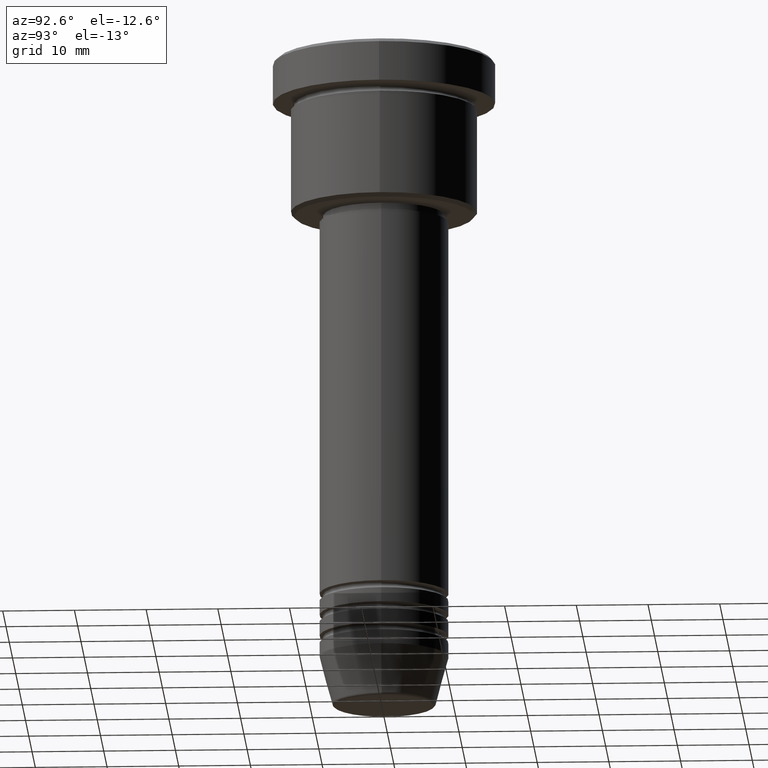
[diagram: clean part render]
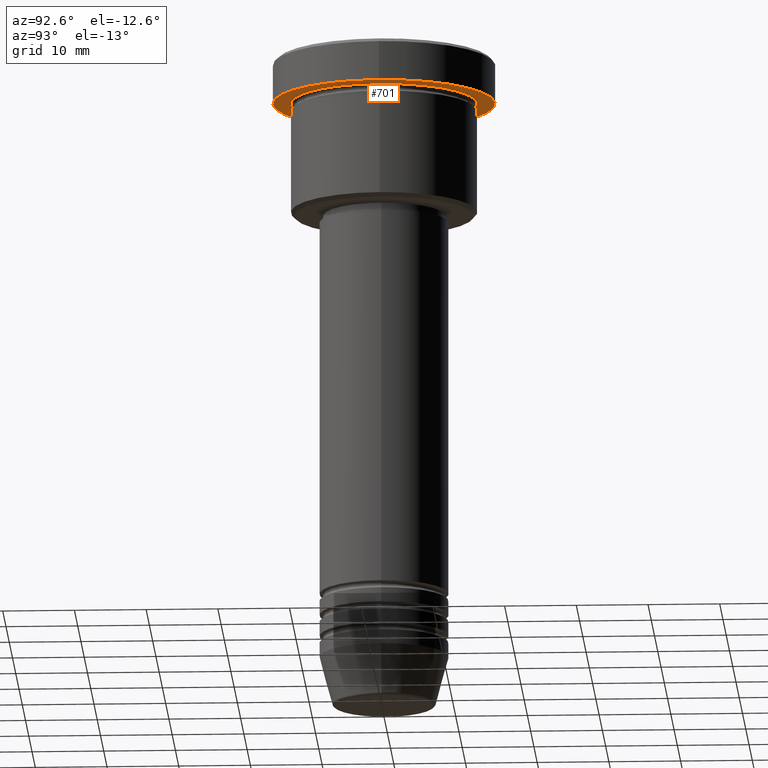
[diagram: same view with one face highlighted and labeled with its STEP entity id]
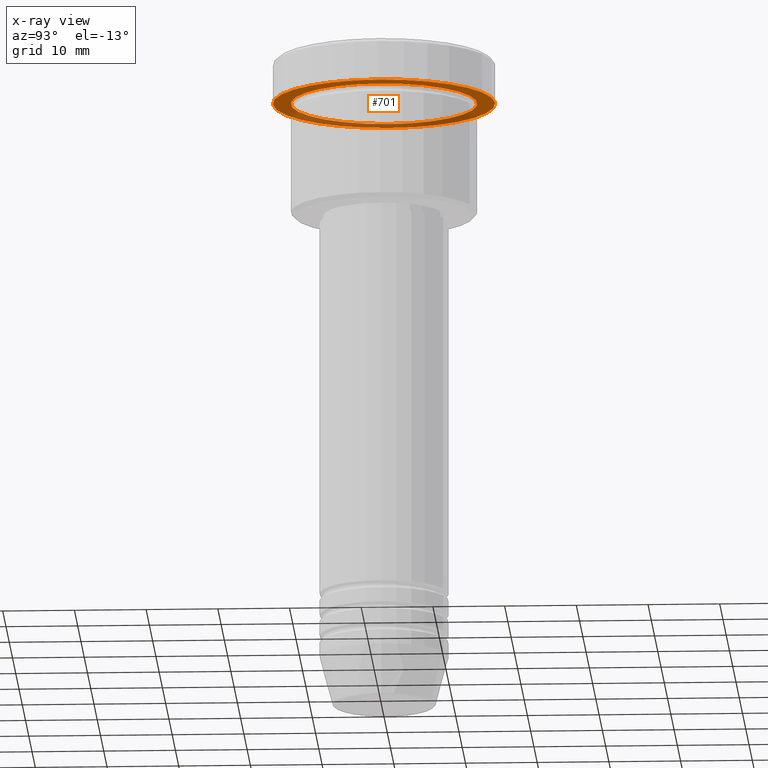
[diagram: x-ray of the same camera — body ghosted, the highlighted face saturated]
A machine part, auxiliary view. The second image highlights one B-rep face of the part: STEP entity #701.
The next image is the same camera in x-ray: the body ghosted, the highlighted face saturated — about 34% of this face is hidden behind the body in this view.
In plain terms, the highlighted planar face has unit normal (0, 0, -1).
Its self-contained STEP definition (entity closure, byte-faithful):
#7 = EDGE_CURVE ( 'NONE', #496, #918, #423, .T. ) ;
#24 = CARTESIAN_POINT ( 'NONE',  ( 0.000000000000000000, 0.000000000000000000, -5.999999999999995559 ) ) ;
#49 = VERTEX_POINT ( 'NONE', #121 ) ;
#86 = CARTESIAN_POINT ( 'NONE',  ( 0.000000000000000000, 0.000000000000000000, -5.999999999999995559 ) ) ;
#99 = CIRCLE ( 'NONE', #482, 13.00000000000000000 ) ;
#121 = CARTESIAN_POINT ( 'NONE',  ( 13.00000000000000000, 1.592040838891559095E-15, -5.999999999999994671 ) ) ;
#165 = DIRECTION ( 'NONE',  ( -1.000000000000000000, 0.000000000000000000, 0.000000000000000000 ) ) ;
#185 = PLANE ( 'NONE',  #969 ) ;
#189 = DIRECTION ( 'NONE',  ( -1.000000000000000000, 0.000000000000000000, -0.000000000000000000 ) ) ;
#203 = DIRECTION ( 'NONE',  ( -0.000000000000000000, -0.000000000000000000, 1.000000000000000000 ) ) ;
#233 = AXIS2_PLACEMENT_3D ( 'NONE', #24, #203, #963 ) ;
#261 = EDGE_LOOP ( 'NONE', ( #457, #858 ) ) ;
#287 = EDGE_CURVE ( 'NONE', #49, #1054, #99, .T. ) ;
#353 = DIRECTION ( 'NONE',  ( -1.000000000000000000, 0.000000000000000000, 0.000000000000000000 ) ) ;
#368 = AXIS2_PLACEMENT_3D ( 'NONE', #86, #1085, #165 ) ;
#423 = CIRCLE ( 'NONE', #233, 15.50000000000000000 ) ;
#426 = CIRCLE ( 'NONE', #657, 15.50000000000000000 ) ;
#441 = CARTESIAN_POINT ( 'NONE',  ( 0.000000000000000000, 0.000000000000000000, -5.999999999999995559 ) ) ;
#457 = ORIENTED_EDGE ( 'NONE', *, *, #726, .F. ) ;
#461 = CARTESIAN_POINT ( 'NONE',  ( 0.000000000000000000, 15.50000000000000000, -5.999999999999995559 ) ) ;
#473 = ORIENTED_EDGE ( 'NONE', *, *, #287, .T. ) ;
#474 = CARTESIAN_POINT ( 'NONE',  ( 0.000000000000000000, 0.000000000000000000, -5.999999999999995559 ) ) ;
#482 = AXIS2_PLACEMENT_3D ( 'NONE', #441, #939, #353 ) ;
#496 = VERTEX_POINT ( 'NONE', #1131 ) ;
#559 = EDGE_CURVE ( 'NONE', #1054, #49, #909, .T. ) ;
#568 = EDGE_LOOP ( 'NONE', ( #821, #473 ) ) ;
#640 = DIRECTION ( 'NONE',  ( 1.000000000000000000, 0.000000000000000000, 0.000000000000000000 ) ) ;
#645 = FACE_OUTER_BOUND ( 'NONE', #261, .T. ) ;
#657 = AXIS2_PLACEMENT_3D ( 'NONE', #474, #937, #640 ) ;
#701 = ADVANCED_FACE ( 'NONE', ( #1016, #645 ), #185, .T. ) ;
#726 = EDGE_CURVE ( 'NONE', #918, #496, #426, .T. ) ;
#821 = ORIENTED_EDGE ( 'NONE', *, *, #559, .T. ) ;
#858 = ORIENTED_EDGE ( 'NONE', *, *, #7, .F. ) ;
#909 = CIRCLE ( 'NONE', #368, 13.00000000000000000 ) ;
#918 = VERTEX_POINT ( 'NONE', #1136 ) ;
#937 = DIRECTION ( 'NONE',  ( -0.000000000000000000, -0.000000000000000000, 1.000000000000000000 ) ) ;
#939 = DIRECTION ( 'NONE',  ( -0.000000000000000000, -0.000000000000000000, 1.000000000000000000 ) ) ;
#943 = DIRECTION ( 'NONE',  ( 0.000000000000000000, 0.000000000000000000, -1.000000000000000000 ) ) ;
#963 = DIRECTION ( 'NONE',  ( 1.000000000000000000, 0.000000000000000000, 0.000000000000000000 ) ) ;
#969 = AXIS2_PLACEMENT_3D ( 'NONE', #461, #943, #189 ) ;
#1016 = FACE_BOUND ( 'NONE', #568, .T. ) ;
#1054 = VERTEX_POINT ( 'NONE', #1103 ) ;
#1085 = DIRECTION ( 'NONE',  ( -0.000000000000000000, -0.000000000000000000, 1.000000000000000000 ) ) ;
#1103 = CARTESIAN_POINT ( 'NONE',  ( -13.00000000000000000, 0.000000000000000000, -5.999999999999994671 ) ) ;
#1131 = CARTESIAN_POINT ( 'NONE',  ( -15.50000000000000000, 1.898202538678397557E-15, -5.999999999999995559 ) ) ;
#1136 = CARTESIAN_POINT ( 'NONE',  ( 15.50000000000000000, 0.000000000000000000, -5.999999999999995559 ) ) ;